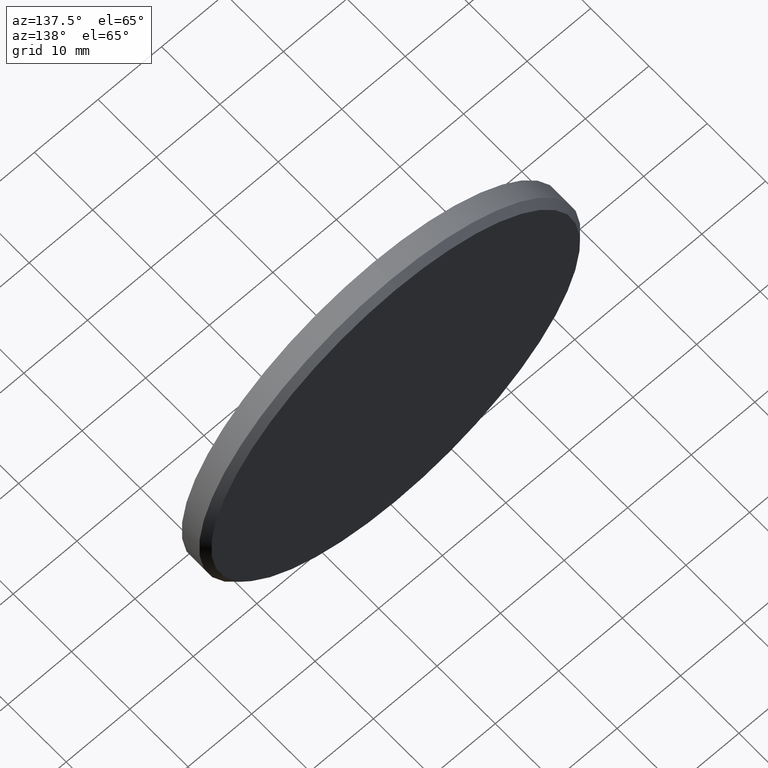
[diagram: clean part render]
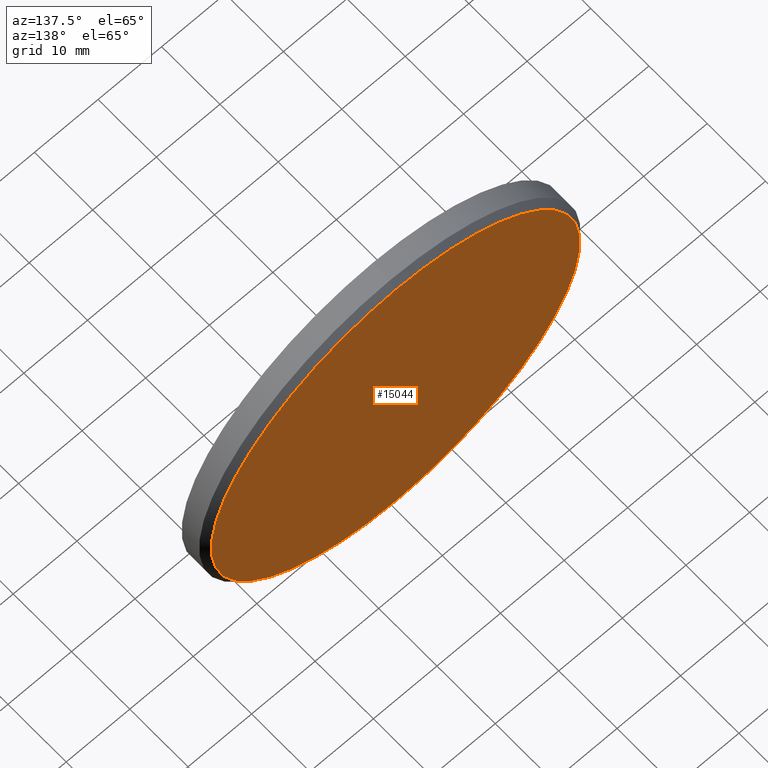
[diagram: same view with one face highlighted and labeled with its STEP entity id]
A machine part, auxiliary view. The second image highlights one B-rep face of the part: STEP entity #15044.
In plain terms, the highlighted planar face has unit normal (0, 1, 0).
Its self-contained STEP definition (entity closure, byte-faithful):
#597 = CARTESIAN_POINT ( 'NONE',  ( 0.000000000000000000, 2.000000000000000000, -29.00000000000000000 ) ) ;
#1755 = DIRECTION ( 'NONE',  ( 0.000000000000000000, -0.000000000000000000, 1.000000000000000000 ) ) ;
#1767 = ORIENTED_EDGE ( 'NONE', *, *, #9234, .T. ) ;
#2279 = CARTESIAN_POINT ( 'NONE',  ( 0.000000000000000000, 2.000000000000000000, 0.000000000000000000 ) ) ;
#2703 = VERTEX_POINT ( 'NONE', #597 ) ;
#3526 = DIRECTION ( 'NONE',  ( 0.000000000000000000, 1.000000000000000000, 0.000000000000000000 ) ) ;
#6394 = DIRECTION ( 'NONE',  ( 0.000000000000000000, 1.000000000000000000, 0.000000000000000000 ) ) ;
#6484 = CARTESIAN_POINT ( 'NONE',  ( 0.000000000000000000, 2.000000000000000000, 0.000000000000000000 ) ) ;
#8035 = EDGE_LOOP ( 'NONE', ( #13371, #1767 ) ) ;
#8040 = AXIS2_PLACEMENT_3D ( 'NONE', #2279, #3526, #10441 ) ;
#8904 = DIRECTION ( 'NONE',  ( 0.000000000000000000, 0.000000000000000000, 1.000000000000000000 ) ) ;
#9212 = AXIS2_PLACEMENT_3D ( 'NONE', #6484, #6394, #1755 ) ;
#9234 = EDGE_CURVE ( 'NONE', #11336, #2703, #14533, .T. ) ;
#9586 = AXIS2_PLACEMENT_3D ( 'NONE', #11339, #13699, #8904 ) ;
#9905 = FACE_OUTER_BOUND ( 'NONE', #8035, .T. ) ;
#10441 = DIRECTION ( 'NONE',  ( 0.000000000000000000, 0.000000000000000000, 1.000000000000000000 ) ) ;
#10509 = CARTESIAN_POINT ( 'NONE',  ( 3.612708057484691604E-15, 2.000000000000000000, 29.00000000000000000 ) ) ;
#10754 = EDGE_CURVE ( 'NONE', #2703, #11336, #13774, .T. ) ;
#11336 = VERTEX_POINT ( 'NONE', #10509 ) ;
#11339 = CARTESIAN_POINT ( 'NONE',  ( 0.000000000000000000, 2.000000000000000000, 0.000000000000000000 ) ) ;
#13371 = ORIENTED_EDGE ( 'NONE', *, *, #10754, .T. ) ;
#13441 = PLANE ( 'NONE',  #9212 ) ;
#13699 = DIRECTION ( 'NONE',  ( 0.000000000000000000, 1.000000000000000000, 0.000000000000000000 ) ) ;
#13774 = CIRCLE ( 'NONE', #9586, 29.00000000000000000 ) ;
#14533 = CIRCLE ( 'NONE', #8040, 29.00000000000000000 ) ;
#15044 = ADVANCED_FACE ( 'NONE', ( #9905 ), #13441, .T. ) ;